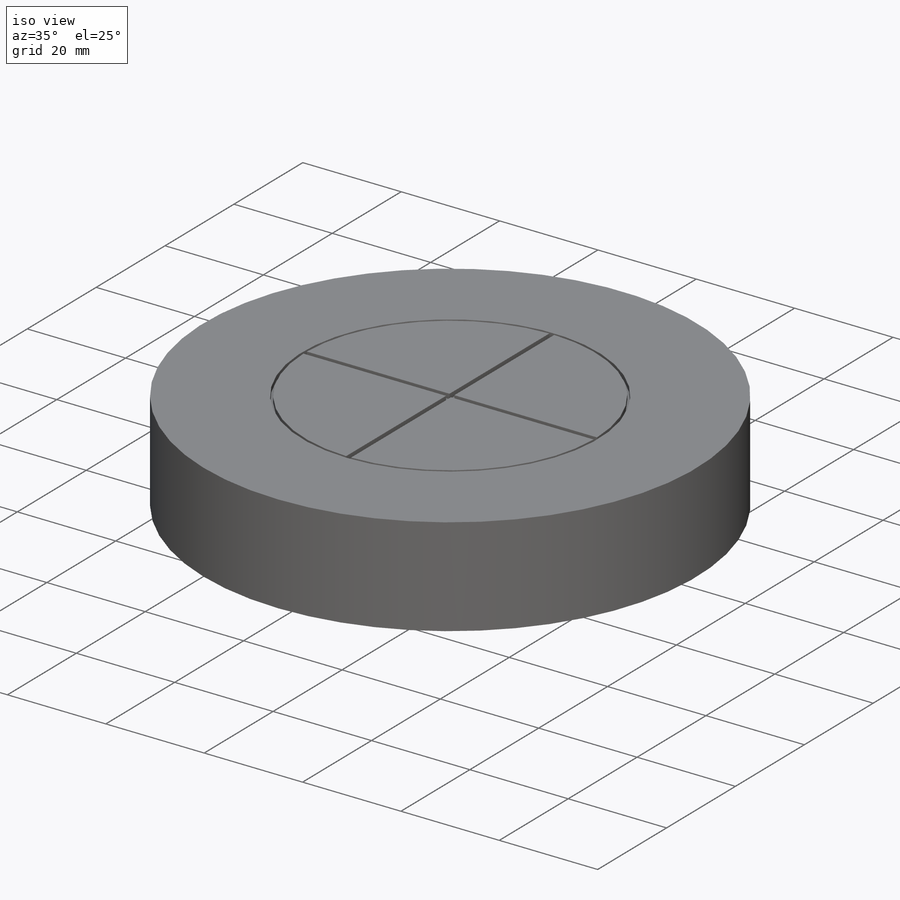
[diagram: iso view]
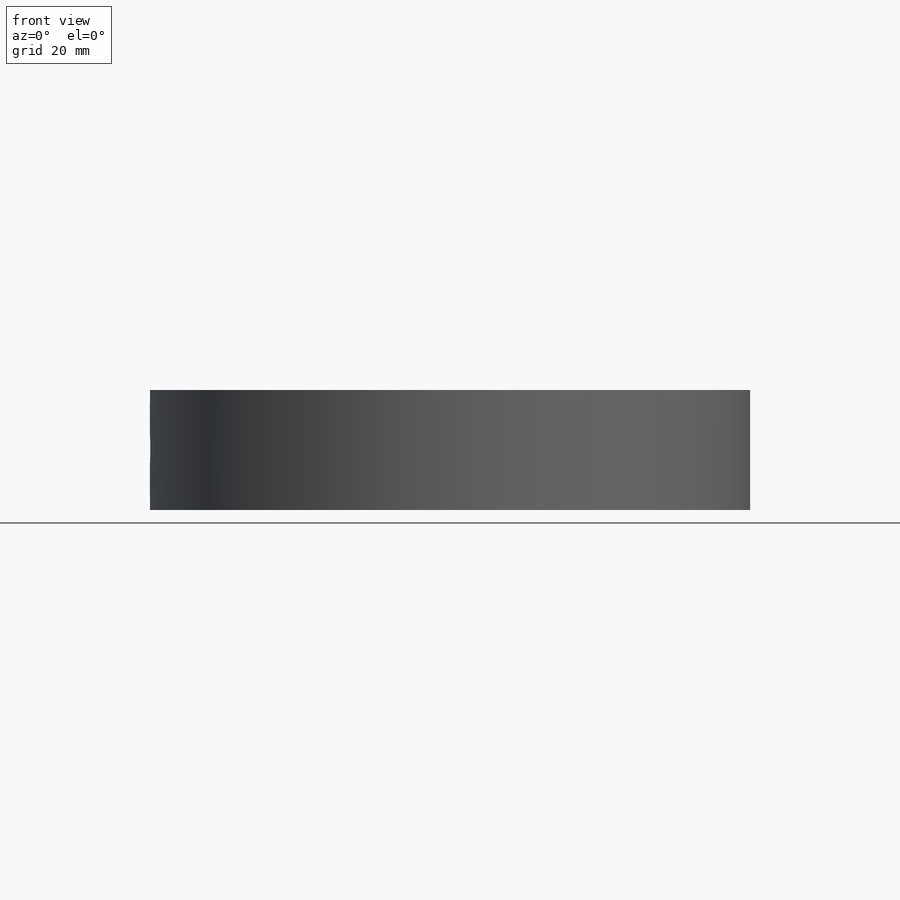
[diagram: front view]
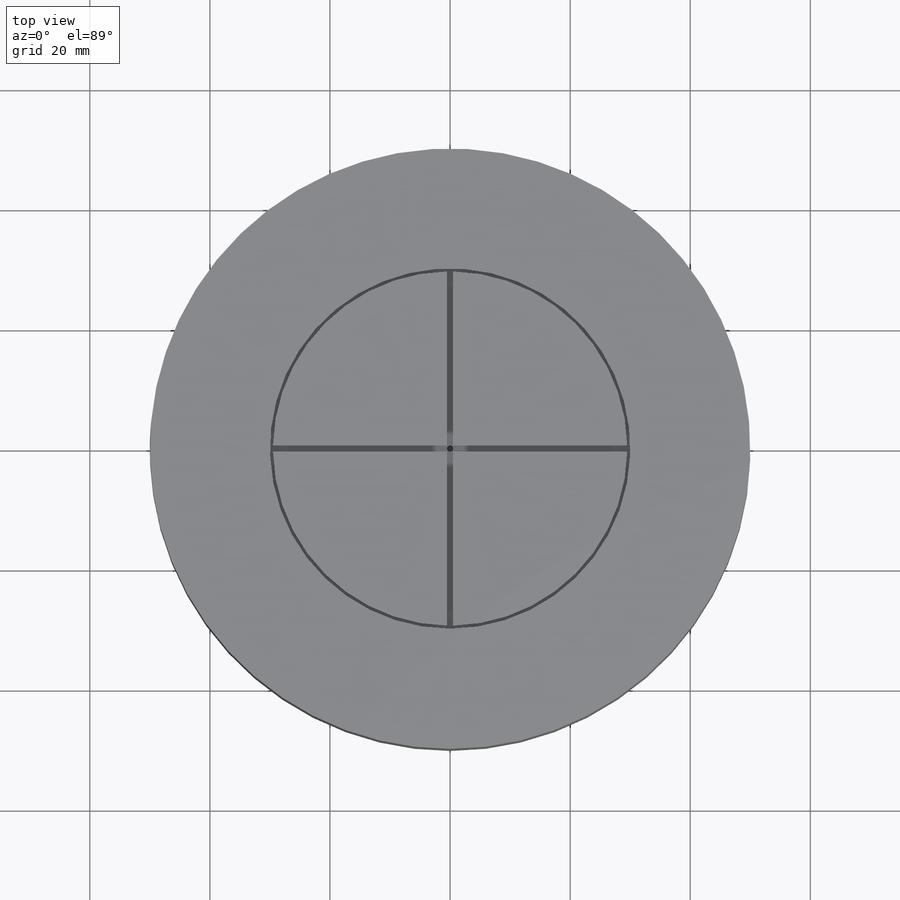
[diagram: top view]
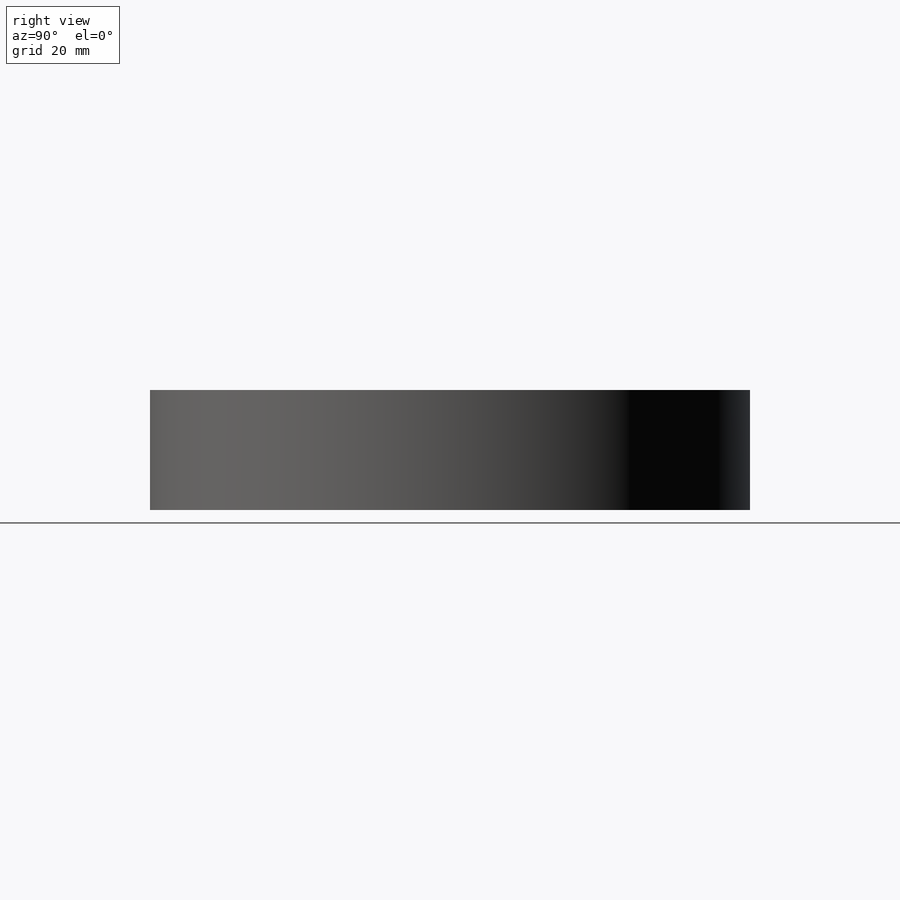
[diagram: right view]
SOLIDWORKS PART (.sldprt)
format: sldprt  version: not decoded by parser v0  size: 241,152 bytes
history: native  units: mm
features: sketch x10, plane x4, hole x2, material x1, extrude x1, cut_extrude x1, cut_revolve x1 (+12 scaffold rows collapsed)
feature tree (32):
  scaffold x12  (default folders/planes/origin — collapsed)
  material  "Material <not specified>"
  sketch  "Sketch1"  dims[c1.D1=~7.919903mm c1.D3=59.0mm c2.D1=1.0mm c2.D2=1.0mm]
  plane  "Plane1"  Offset=0mm
  sketch  "Sketch2"  dims[D1=~49.688853mm]
  extrude  "Boss-Extrude2"  Depth=20mm
  cut_extrude  "Cut-Extrude1"  Depth=1mm
  plane  "Plane2"
  plane  "Plane3"  Offset=0mm
  sketch  "Sketch4"
  hole  "#60 (0.04) Diameter Hole1"  Diameter=1.016mm Depth=10mm
  sketch  "3DSketch2"
  sketch  "Sketch5"  dims[hole-wizard template sketch: 46 standard entries collapsed; hole parameters kept: c15.Hole Dia.=1.016mm c15.Hole Depth=10.0mm c15.D3=~14.816244mm c15.Drill Angle=118.0deg]
  sketch  "Sketch6"
  hole  "#2 (0.221) Diameter Hole1"  Diameter=5.6134mm Depth=55mm
  sketch  "3DSketch3"
  sketch  "Sketch7"  dims[hole-wizard template sketch: 47 standard entries collapsed; hole parameters kept: c15.Hole Depth=55.0mm c15.D3=~14.816244mm c15.Drill Angle=118.0deg]
  sketch  "Sketch8"  dims[D1=~49.918607mm]
  plane  "Plane4"  Offset=0mm
  sketch  "Sketch9"  dims[D1=~9.793651mm]
  cut_revolve  "Cut-Revolve1"  Angle=360deg
decode coverage: 11 of 15 modeling features carry decoded parameters
note: ~ marks probable driven/reference dimensions
note: suppression state not decoded; provenance and decode notes live in map.json
